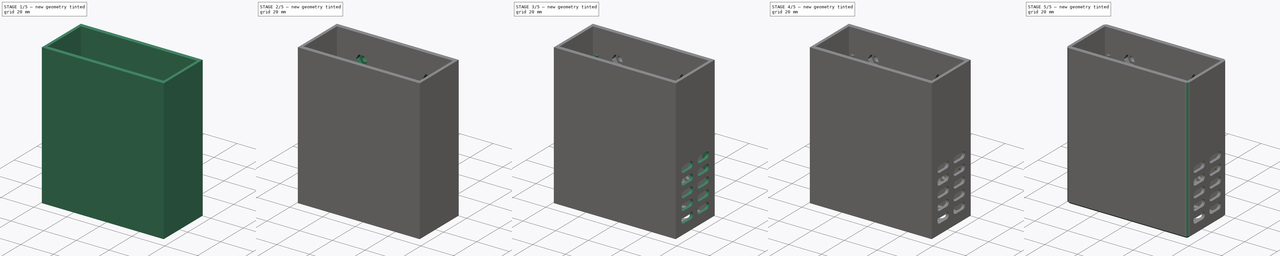
[diagram: build sequence overview — one tinted view per stage of 5, left to right]
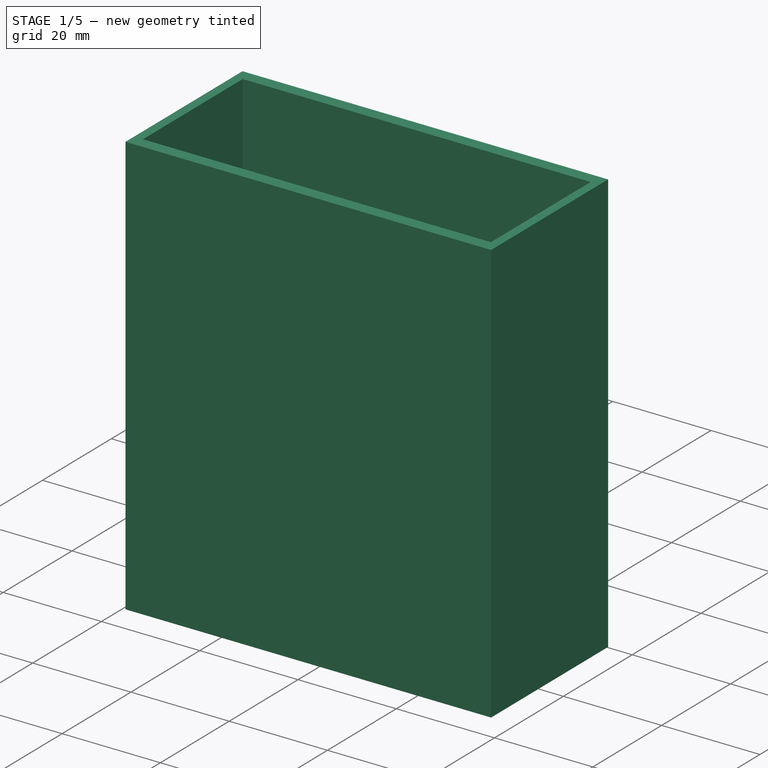
[diagram: stage 1 of 5 — iso view after this stage's code; geometry added in this stage tinted green]
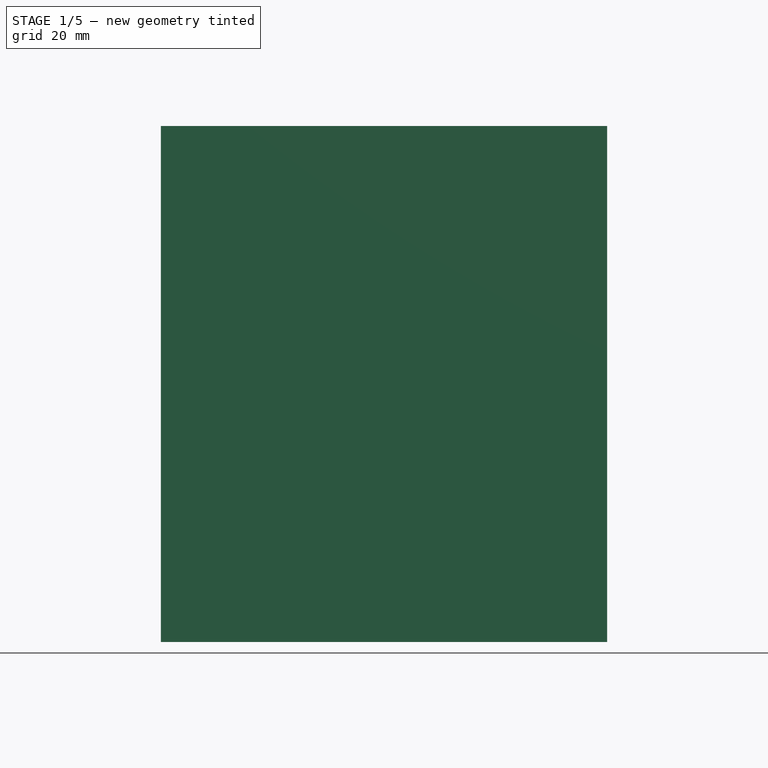
[diagram: stage 1 of 5 — front view after this stage's code; geometry added in this stage tinted green]
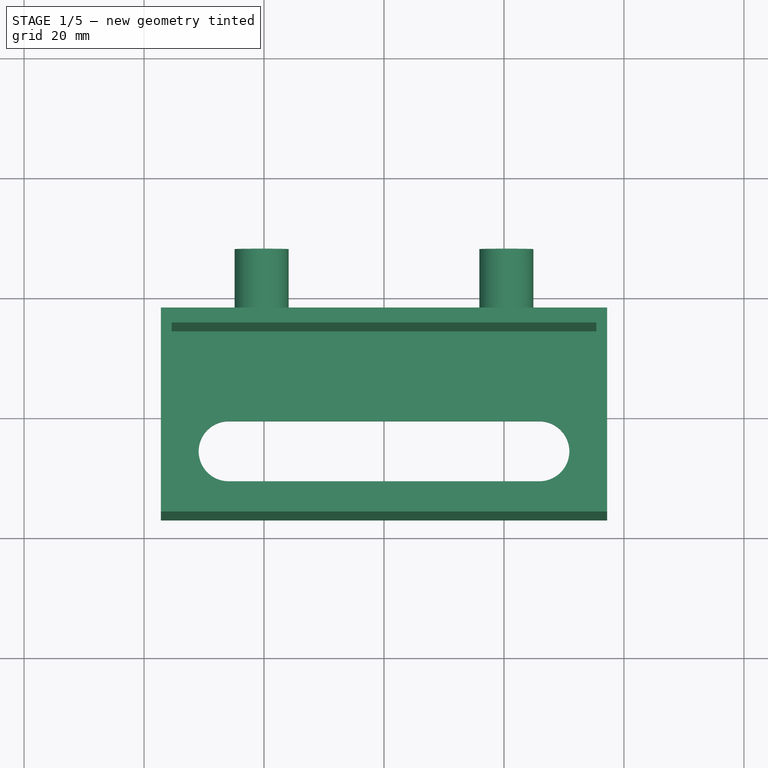
[diagram: stage 1 of 5 — top view after this stage's code; geometry added in this stage tinted green]
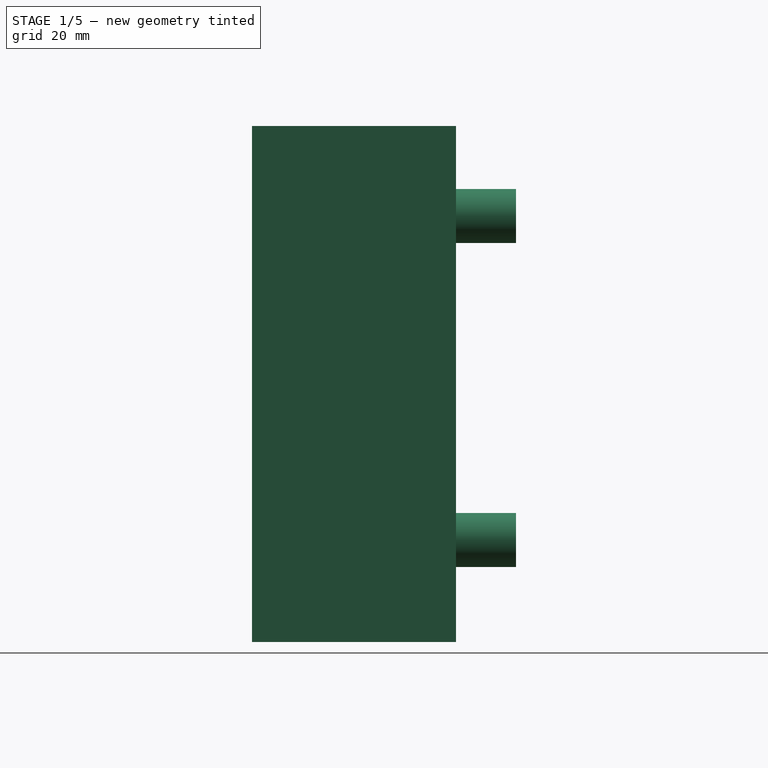
[diagram: stage 1 of 5 — right view after this stage's code; geometry added in this stage tinted green]
FCSTD DOCUMENT  (FreeCAD 0.19R22960 (Git))
Label: STC-1000 box
License: All rights reserved
LicenseURL: http://en.wikipedia.org/wiki/All_rights_reserved
objects: Sketcher::SketchObject×12, PartDesign::Pad×6, PartDesign::Pocket×6, PartDesign::LinearPattern×4, PartDesign::Chamfer×4, PartDesign::MultiTransform×3, PartDesign::Mirrored×3, PartDesign::Plane×1, PartDesign::Fillet×1, PartDesign::Body×1, TechDraw::DrawSVGTemplate×1, TechDraw::DrawViewPart×1, TechDraw::DrawPage×1
note: 58 computed .brp shape members not serialized (recipe doc carries the construction recipe); baked Part::Feature solids carry a one-line shape summary decoded from their .brp

FEATURE [Sketcher::SketchObject] Sketch
  MapMode = 5
  Support = -> [XY_Plane]
  sketch-geometry (4):
    g0: LineSegment StartX=-37.2 StartY=17 StartZ=0 EndX=37.2 EndY=17 EndZ=0
    g1: LineSegment StartX=37.2 StartY=17 StartZ=0 EndX=37.2 EndY=-17 EndZ=0
    g2: LineSegment StartX=37.2 StartY=-17 StartZ=0 EndX=-37.2 EndY=-17 EndZ=0
    g3: LineSegment StartX=-37.2 StartY=-17 StartZ=0 EndX=-37.2 EndY=17 EndZ=0
  constraints (11):
    c: Coincident(g0,g1)
    c: Coincident(g1,g2)
    c: Coincident(g2,g3)
    c: Coincident(g3,g0)
    c: Horizontal(g0)
    c: Horizontal(g2)
    c: Vertical(g1)
    c: Vertical(g3)
    c: Symmetric(g0,g1,g-1)
    c: DistanceX(g0,g0) = 74.4
    c: DistanceY(g3,g3) = 34
FEATURE [PartDesign::Pad] Pad
  Direction = (1,1,1)
  Length = 2
  Length2 = 100
  Profile = -> Sketch
  Refine = true
  Type = 0
FEATURE [Sketcher::SketchObject] Sketch001
  ExternalGeometry = -> [Pad]
  MapMode = 5
  Placement = pos=(0,0,2) rot=(0,0,1;0rad)
  Support = -> [Pad]
  sketch-geometry (8):
    g0: LineSegment StartX=-37.2 StartY=17 StartZ=0 EndX=37.2 EndY=17 EndZ=0
    g1: LineSegment StartX=37.2 StartY=17 StartZ=0 EndX=37.2 EndY=-17 EndZ=0
    g2: LineSegment StartX=37.2 StartY=-17 StartZ=0 EndX=-37.2 EndY=-17 EndZ=0
    g3: LineSegment StartX=-37.2 StartY=-17 StartZ=0 EndX=-37.2 EndY=17 EndZ=0
    g4: LineSegment StartX=-35.4 StartY=14.5 StartZ=0 EndX=35.4 EndY=14.5 EndZ=0
    g5: LineSegment StartX=35.4 StartY=14.5 StartZ=0 EndX=35.4 EndY=-14.5 EndZ=0
    g6: LineSegment StartX=35.4 StartY=-14.5 StartZ=0 EndX=-35.4 EndY=-14.5 EndZ=0
    g7: LineSegment StartX=-35.4 StartY=-14.5 StartZ=0 EndX=-35.4 EndY=14.5 EndZ=0
  constraints (23):
    c: Coincident(g0,g1)
    c: Coincident(g1,g2)
    c: Coincident(g2,g3)
    c: Coincident(g3,g0)
    c: Horizontal(g0)
    c: Horizontal(g2)
    c: Vertical(g1)
    c: Vertical(g3)
    c: Coincident(g0,g-3)
    c: Coincident(g1,g-4)
    c: Coincident(g4,g5)
    c: Coincident(g5,g6)
    c: Coincident(g6,g7)
    c: Coincident(g7,g4)
    c: Horizontal(g4)
    c: Horizontal(g6)
    c: Vertical(g5)
    c: Vertical(g7)
    c: Symmetric(g4,g5,g-1)
    c: DistanceY(g4,g0) = 2.5
    c: DistanceX(g0,g4) = 1.8
    c: DistanceX(g4,g4) = 70.8
    c: DistanceY(g5,g5) = 29
FEATURE [PartDesign::Pad] Pad001
  BaseFeature = -> Pad
  Direction = (1,1,1)
  Length = 84
  Length2 = 100
  Profile = -> Sketch001
  Refine = true
  Type = 0
FEATURE [Sketcher::SketchObject] Sketch002
  ExternalGeometry = -> [Pad001]
  MapMode = 5
  Placement = pos=(0,0,0) rot=(1,0,0;3.14159rad)
  Support = -> [Pad001]
  sketch-geometry (5):
    g0: ArcOfCircle CenterX=-25.9 CenterY=5.5 CenterZ=0 NormalX=0 NormalY=0 NormalZ=1 AngleXU=0 Radius=5 StartAngle=1.5708 EndAngle=4.71239
    g1: ArcOfCircle CenterX=25.9 CenterY=5.5 CenterZ=0 NormalX=0 NormalY=0 NormalZ=1 AngleXU=0 Radius=5 StartAngle=4.71239 EndAngle=7.85398
    g2: LineSegment StartX=-25.9 StartY=0.5 StartZ=0 EndX=25.9 EndY=0.5 EndZ=0
    g3: LineSegment StartX=-25.9 StartY=10.5 StartZ=0 EndX=25.9 EndY=10.5 EndZ=0
    g4: GeomPoint X=30.9 Y=5.5 Z=0
  constraints (12):
    c: Tangent(g0,g3)
    c: Tangent(g0,g2)
    c: Tangent(g2,g1)
    c: Horizontal(g2)
    c: Coincident(g1,g3)
    c: Horizontal(g3)
    c: Symmetric(g0,g1,g-2)
    c: DistanceY(g1,g1) = 10
    c: PointOnObject(g4,g1)
    c: Horizontal(g4,g1)
    c: DistanceX(g4,g-3) = 4.5
    c: DistanceY(g1,g-4) = 9
FEATURE [PartDesign::Pocket] Pocket
  BaseFeature = -> Pad001
  Length = 5
  Length2 = 100
  Profile = -> Sketch002
  Refine = true
  Type = 2
FEATURE [Sketcher::SketchObject] Sketch003
  ExternalGeometry = -> [Pocket]
  MapMode = 5
  Placement = pos=(0,17,0) rot=(0,0.707107,0.707107;3.14159rad)
  Support = -> [Pocket]
  sketch-geometry (5):
    g0: Circle CenterX=20.4 CenterY=71 CenterZ=0 NormalX=0 NormalY=0 NormalZ=1 AngleXU=0 Radius=4.5
    g1: Circle CenterX=20.4 CenterY=17 CenterZ=0 NormalX=0 NormalY=0 NormalZ=1 AngleXU=0 Radius=4.5
    g2: Circle CenterX=-20.4 CenterY=71 CenterZ=0 NormalX=0 NormalY=0 NormalZ=1 AngleXU=0 Radius=4.5
    g3: Circle CenterX=-20.4 CenterY=17 CenterZ=0 NormalX=0 NormalY=0 NormalZ=1 AngleXU=0 Radius=4.5
    g4: LineSegment [constr] StartX=35.4 StartY=44 StartZ=0 EndX=-35.4 EndY=44 EndZ=0
  constraints (12):
    c: Equal(g2,g0)
    c: Equal(g0,g1)
    c: Equal(g1,g3)
    c: Diameter(g2) = 9
    c: Symmetric(g3,g1,g-2)
    c: Symmetric(g2,g0,g-2)
    c: Symmetric(g-5,g-5,g4)
    c: PointOnObject(g4,g-5)
    c: PointOnObject(g4,g-4)
    c: Symmetric(g0,g1,g4)
    c: DistanceY(g-5,g3) = 15
    c: DistanceX(g-5,g3) = 15
FEATURE [PartDesign::Pad] Pad002
  BaseFeature = -> Pocket
  Direction = (1,1,1)
  Length = 10
  Length2 = 100
  Profile = -> Sketch003
  Refine = true
  Type = 0
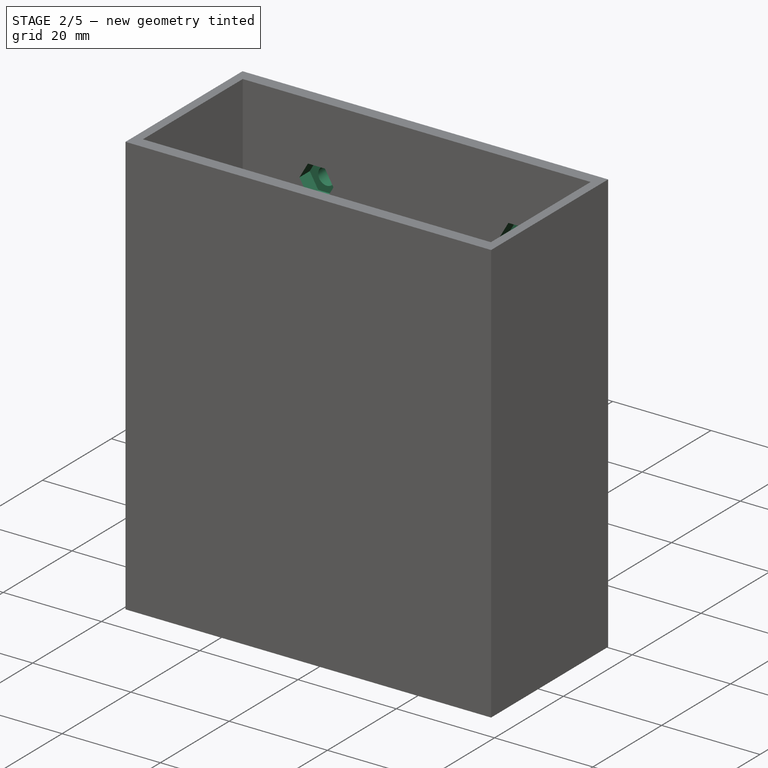
[diagram: stage 2 of 5 — iso view after this stage's code; geometry added in this stage tinted green]
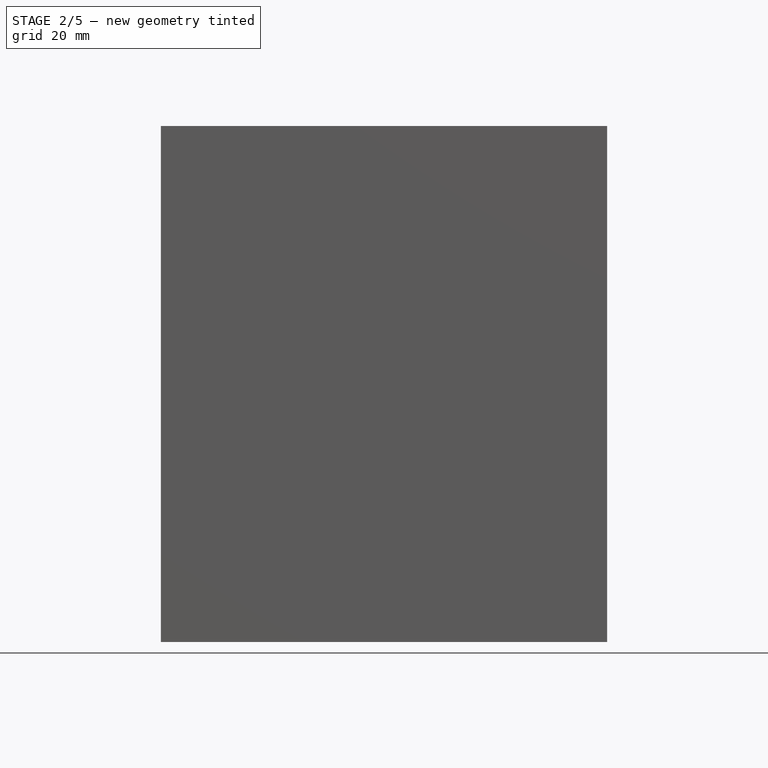
[diagram: stage 2 of 5 — front view after this stage's code; geometry added in this stage tinted green]
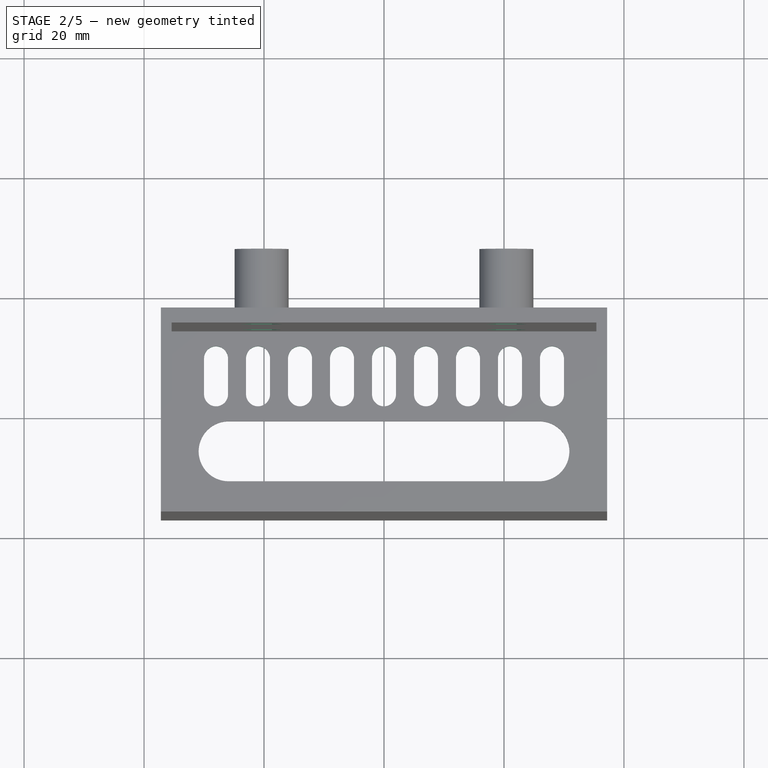
[diagram: stage 2 of 5 — top view after this stage's code; geometry added in this stage tinted green]
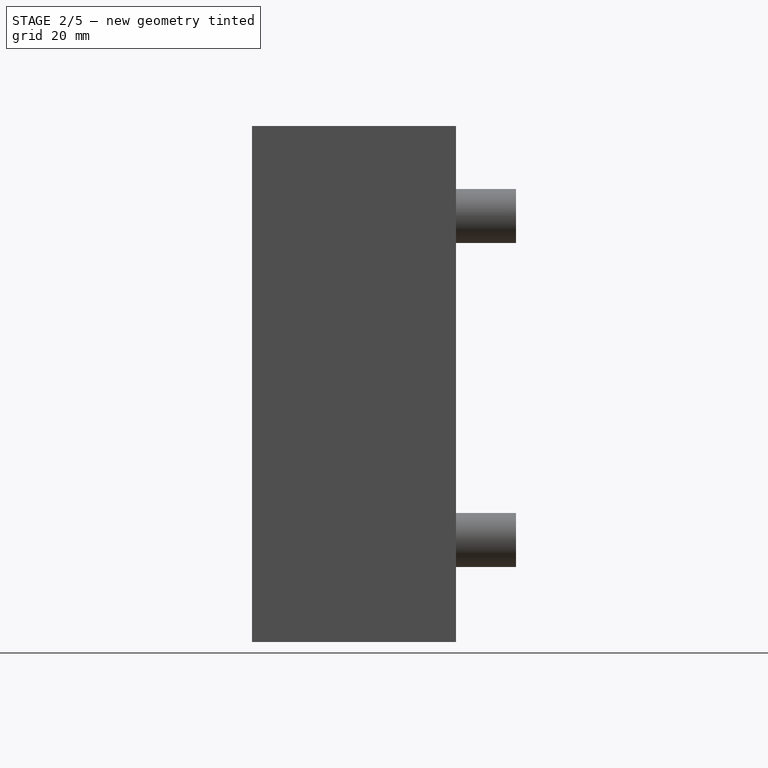
[diagram: stage 2 of 5 — right view after this stage's code; geometry added in this stage tinted green]
FEATURE [Sketcher::SketchObject] Sketch004
  ExternalGeometry = -> [Pad002]
  MapMode = 5
  Placement = pos=(0,14.5,0) rot=(1,0,0;1.5708rad)
  Support = -> [Pad002]
  sketch-geometry (4):
    g0: Circle CenterX=-20.4 CenterY=71 CenterZ=0 NormalX=0 NormalY=0 NormalZ=1 AngleXU=0 Radius=1.75
    g1: Circle CenterX=20.4 CenterY=71 CenterZ=0 NormalX=0 NormalY=0 NormalZ=1 AngleXU=0 Radius=1.75
    g2: Circle CenterX=20.4 CenterY=17 CenterZ=0 NormalX=0 NormalY=0 NormalZ=1 AngleXU=0 Radius=1.75
    g3: Circle CenterX=-20.4 CenterY=17 CenterZ=0 NormalX=0 NormalY=0 NormalZ=1 AngleXU=0 Radius=1.75
  constraints (8):
    c: Coincident(g0,g-3)
    c: Coincident(g1,g-4)
    c: Coincident(g2,g-5)
    c: Coincident(g3,g-6)
    c: Equal(g3,g2)
    c: Equal(g2,g1)
    c: Equal(g1,g0)
    c: Diameter(g0) = 3.5
FEATURE [PartDesign::Pocket] Pocket001
  BaseFeature = -> Pad002
  Length = 4
  Length2 = 100
  Profile = -> Sketch004
  Refine = true
  Type = 1
FEATURE [Sketcher::SketchObject] Sketch005
  ExternalGeometry = -> [Pocket001]
  MapMode = 5
  Placement = pos=(0,14.5,0) rot=(1,0,0;1.5708rad)
  Support = -> [Pocket001]
  sketch-geometry (28):
    g0: LineSegment StartX=-18.6679 StartY=68 StartZ=0 EndX=-16.9359 EndY=71 EndZ=0
    g1: LineSegment StartX=-16.9359 StartY=71 StartZ=0 EndX=-18.6679 EndY=74 EndZ=0
    g2: LineSegment StartX=-18.6679 StartY=74 StartZ=0 EndX=-22.1321 EndY=74 EndZ=0
    g3: LineSegment StartX=-22.1321 StartY=74 StartZ=0 EndX=-23.8641 EndY=71 EndZ=0
    g4: LineSegment StartX=-23.8641 StartY=71 StartZ=0 EndX=-22.1321 EndY=68 EndZ=0
    g5: LineSegment StartX=-22.1321 StartY=68 StartZ=0 EndX=-18.6679 EndY=68 EndZ=0
    g6: Circle [constr] CenterX=-20.4 CenterY=71 CenterZ=0 NormalX=0 NormalY=0 NormalZ=1 AngleXU=0 Radius=3.4641
    g7: LineSegment StartX=22.1321 StartY=68 StartZ=0 EndX=23.8641 EndY=71 EndZ=0
    g8: LineSegment StartX=23.8641 StartY=71 StartZ=0 EndX=22.1321 EndY=74 EndZ=0
    g9: LineSegment StartX=22.1321 StartY=74 StartZ=0 EndX=18.6679 EndY=74 EndZ=0
    g10: LineSegment StartX=18.6679 StartY=74 StartZ=0 EndX=16.9359 EndY=71 EndZ=0
    g11: LineSegment StartX=16.9359 StartY=71 StartZ=0 EndX=18.6679 EndY=68 EndZ=0
    g12: LineSegment StartX=18.6679 StartY=68 StartZ=0 EndX=22.1321 EndY=68 EndZ=0
    g13: Circle [constr] CenterX=20.4 CenterY=71 CenterZ=0 NormalX=0 NormalY=0 NormalZ=1 AngleXU=0 Radius=3.4641
    g14: LineSegment StartX=-18.6679 StartY=14 StartZ=0 EndX=-16.9359 EndY=17 EndZ=0
    g15: LineSegment StartX=-16.9359 StartY=17 StartZ=0 EndX=-18.6679 EndY=20 EndZ=0
    g16: LineSegment StartX=-18.6679 StartY=20 StartZ=0 EndX=-22.1321 EndY=20 EndZ=0
    g17: LineSegment StartX=-22.1321 StartY=20 StartZ=0 EndX=-23.8641 EndY=17 EndZ=0
    g18: LineSegment StartX=-23.8641 StartY=17 StartZ=0 EndX=-22.1321 EndY=14 EndZ=0
    g19: LineSegment StartX=-22.1321 StartY=14 StartZ=0 EndX=-18.6679 EndY=14 EndZ=0
    g20: Circle [constr] CenterX=-20.4 CenterY=17 CenterZ=0 NormalX=0 NormalY=0 NormalZ=1 AngleXU=0 Radius=3.4641
    g21: LineSegment StartX=22.1321 StartY=14 StartZ=0 EndX=23.8641 EndY=17 EndZ=0
    g22: LineSegment StartX=23.8641 StartY=17 StartZ=0 EndX=22.1321 EndY=20 EndZ=0
    g23: LineSegment StartX=22.1321 StartY=20 StartZ=0 EndX=18.6679 EndY=20 EndZ=0
    g24: LineSegment StartX=18.6679 StartY=20 StartZ=0 EndX=16.9359 EndY=17 EndZ=0
    g25: LineSegment StartX=16.9359 StartY=17 StartZ=0 EndX=18.6679 EndY=14 EndZ=0
    g26: LineSegment StartX=18.6679 StartY=14 StartZ=0 EndX=22.1321 EndY=14 EndZ=0
    g27: Circle [constr] CenterX=20.4 CenterY=17 CenterZ=0 NormalX=0 NormalY=0 NormalZ=1 AngleXU=0 Radius=3.4641
  constraints (65):
    c: Coincident(g0,g1)
    c: Coincident(g1,g2)
    c: Coincident(g2,g3)
    c: Coincident(g3,g4)
    c: Coincident(g4,g5)
    c: Coincident(g5,g0)
    c: Equal(g0, g1-g4) x4
    c: PointOnObject(g0,g6)
    c: PointOnObject(g1,g6)
    c: PointOnObject(g2,g6)
    c: PointOnObject(g3,g6)
    c: PointOnObject(g4,g6)
    c: PointOnObject(g5,g6)
    c: Coincident(g6,g-3)
    c: Coincident(g7,g8)
    c: Coincident(g8,g9)
    c: Coincident(g9,g10)
    c: Coincident(g10,g11)
    c: Coincident(g11,g12)
    c: Coincident(g12,g7)
    c: Equal(g7, g8-g12) x5
    c: PointOnObject(g7,g13)
    c: PointOnObject(g8,g13)
    c: PointOnObject(g9,g13)
    c: PointOnObject(g10,g13)
    c: PointOnObject(g11,g13)
    c: PointOnObject(g12,g13)
    c: Coincident(g13,g-4)
    c: Coincident(g14,g15)
    c: Coincident(g15,g16)
    c: Coincident(g16,g17)
    c: Coincident(g17,g18)
    c: Coincident(g18,g19)
    c: Coincident(g19,g14)
    c: Equal(g14, g15-g19) x5
    c: PointOnObject(g14,g20)
    c: PointOnObject(g15,g20)
    c: PointOnObject(g16,g20)
    c: PointOnObject(g17,g20)
    c: PointOnObject(g18,g20)
    c: PointOnObject(g19,g20)
    c: Coincident(g20,g-6)
    c: Coincident(g21,g22)
    c: Coincident(g22,g23)
    c: Coincident(g23,g24)
    c: Coincident(g24,g25)
    c: Coincident(g25,g26)
    c: Coincident(g26,g21)
    c: Equal(g21, g22-g26) x5
    c: PointOnObject(g21,g27)
    c: PointOnObject(g22,g27)
    c: PointOnObject(g23,g27)
    c: PointOnObject(g24,g27)
    c: PointOnObject(g25,g27)
    c: PointOnObject(g26,g27)
    c: Coincident(g27,g-5)
    c: Equal(g27,g20)
    c: Equal(g20,g13)
    c: Equal(g13,g6)
    c: Horizontal(g12)
    c: Horizontal(g5)
    c: Horizontal(g19)
    c: Horizontal(g26)
    c: DistanceY(g0,g1) = 6
    c: Equal(g4,g5)
FEATURE [PartDesign::Pocket] Pocket002
  BaseFeature = -> Pocket001
  Length = 3
  Length2 = 100
  Profile = -> Sketch005
  Refine = true
  Type = 0
FEATURE [Sketcher::SketchObject] Sketch006
  MapMode = 5
  Placement = pos=(0,0,0) rot=(1,0,0;3.14159rad)
  Support = -> [Pocket002]
  sketch-geometry (4):
    g0: ArcOfCircle CenterX=0 CenterY=-4 CenterZ=0 NormalX=0 NormalY=0 NormalZ=1 AngleXU=0 Radius=2 StartAngle=-2.49933e-11 EndAngle=3.14159
    g1: ArcOfCircle CenterX=1e-16 CenterY=-10 CenterZ=0 NormalX=0 NormalY=0 NormalZ=1 AngleXU=0 Radius=2 StartAngle=3.14159 EndAngle=6.28319
    g2: LineSegment StartX=-2 StartY=-4 StartZ=0 EndX=-2 EndY=-10 EndZ=0
    g3: LineSegment StartX=2 StartY=-4 StartZ=0 EndX=2 EndY=-10 EndZ=0
  constraints (10):
    c: Tangent(g0,g3)
    c: Tangent(g0,g2)
    c: Tangent(g2,g1)
    c: Tangent(g3,g1)
    c: Vertical(g2)
    c: Equal(g0,g1)
    c: PointOnObject(g0,g-2)
    c: DistanceX(g0,g0) = 4
    c: DistanceY(g1,g0) = 6
    c: DistanceY(g0,g-1) = 4
FEATURE [PartDesign::Pocket] Pocket003
  BaseFeature = -> Pocket002
  Length = 5
  Length2 = 100
  Profile = -> Sketch006
  Refine = true
  Type = 2
FEATURE [PartDesign::LinearPattern] LinearPattern
  Direction = -> Sketch006 [H_Axis]
  Length = 28
  Occurrences = 5
  Refine = true
FEATURE [PartDesign::LinearPattern] LinearPattern001
  Direction = -> Sketch006 [H_Axis]
  Length = 28
  Occurrences = 5
  Refine = true
  Reversed = true
FEATURE [PartDesign::MultiTransform] MultiTransform
  BaseFeature = -> Pocket003
  Originals = -> [Pocket003]
  Refine = true
  Transformations = -> [LinearPattern,LinearPattern001]
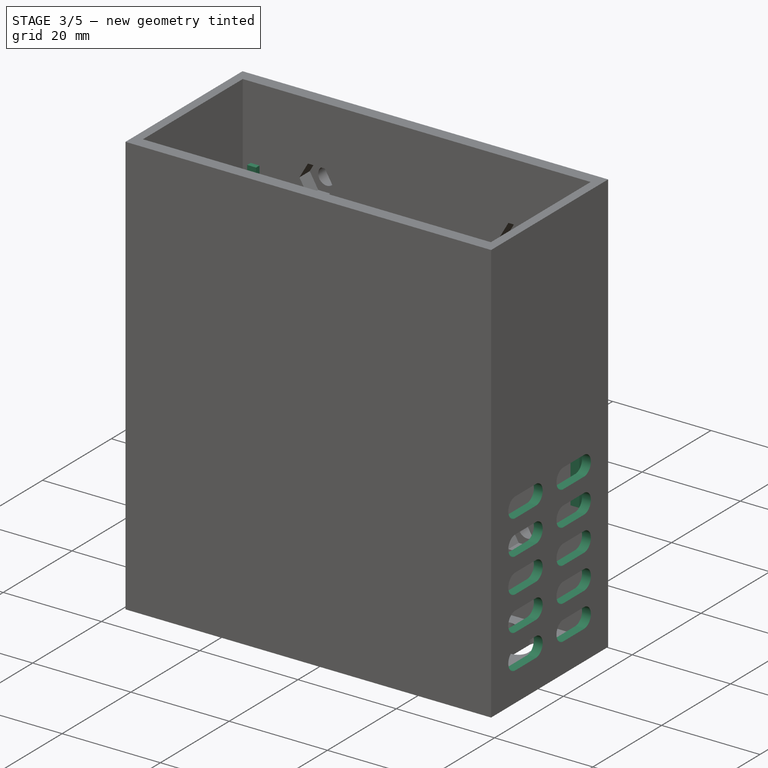
[diagram: stage 3 of 5 — iso view after this stage's code; geometry added in this stage tinted green]
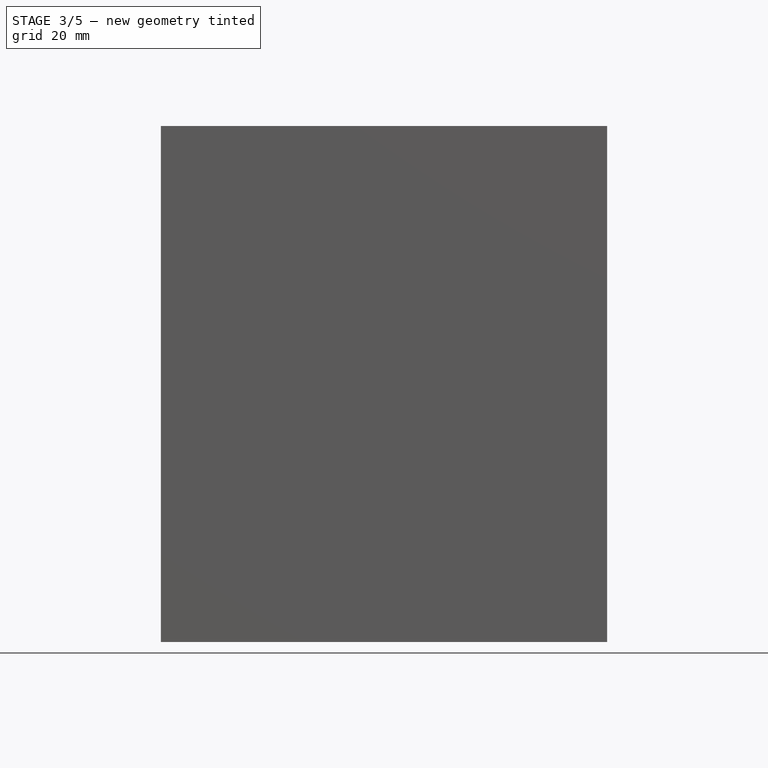
[diagram: stage 3 of 5 — front view after this stage's code; geometry added in this stage tinted green]
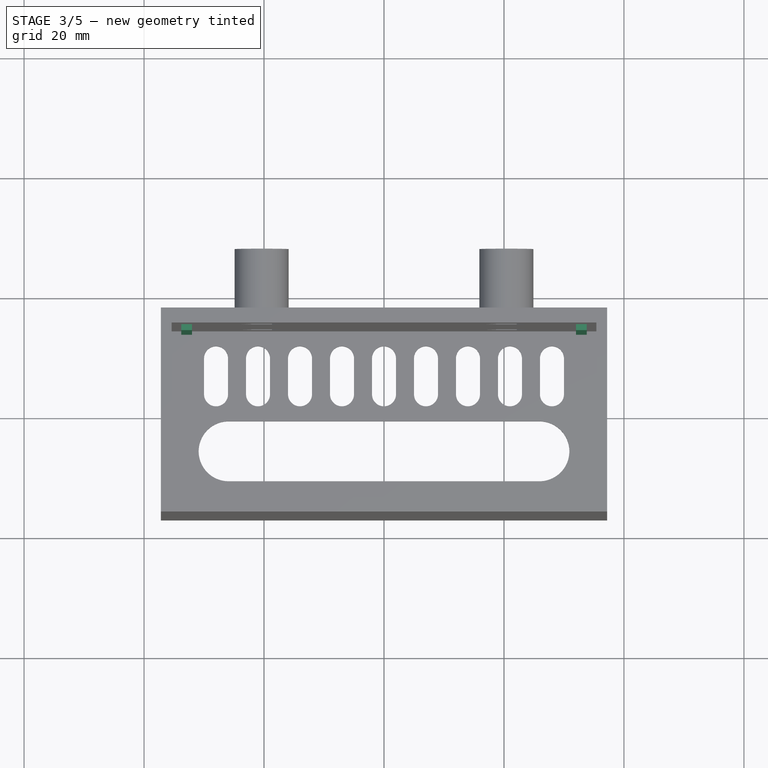
[diagram: stage 3 of 5 — top view after this stage's code; geometry added in this stage tinted green]
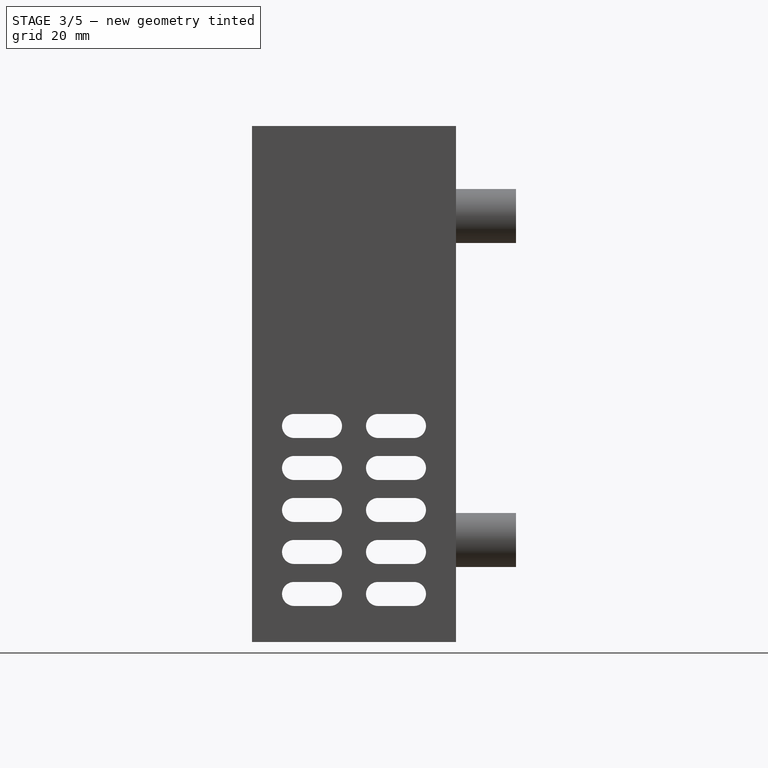
[diagram: stage 3 of 5 — right view after this stage's code; geometry added in this stage tinted green]
FEATURE [Sketcher::SketchObject] Sketch007
  MapMode = 5
  Placement = pos=(-37.2,0,0) rot=(0.57735,-0.57735,-0.57735;2.0944rad)
  Support = -> [MultiTransform]
  sketch-geometry (4):
    g0: ArcOfCircle CenterX=4 CenterY=8 CenterZ=0 NormalX=0 NormalY=0 NormalZ=1 AngleXU=0 Radius=2 StartAngle=1.5708 EndAngle=4.71239
    g1: ArcOfCircle CenterX=10 CenterY=8 CenterZ=0 NormalX=0 NormalY=0 NormalZ=1 AngleXU=0 Radius=2 StartAngle=4.71239 EndAngle=7.85398
    g2: LineSegment StartX=4 StartY=6 StartZ=0 EndX=10 EndY=6 EndZ=0
    g3: LineSegment StartX=4 StartY=10 StartZ=0 EndX=10 EndY=10 EndZ=0
  constraints (10):
    c: Tangent(g0,g3)
    c: Tangent(g0,g2)
    c: Tangent(g2,g1)
    c: Tangent(g3,g1)
    c: Horizontal(g2)
    c: Equal(g0,g1)
    c: DistanceX(g0,g1) = 6
    c: Diameter(g1) = 4
    c: DistanceX(g-1,g0) = 4
    c: DistanceY(g-1,g0) = 8
FEATURE [PartDesign::Pocket] Pocket004
  BaseFeature = -> MultiTransform
  Length = 5
  Length2 = 100
  Profile = -> Sketch007
  Refine = true
  Type = 2
FEATURE [PartDesign::LinearPattern] LinearPattern002
  Direction = -> Sketch007 [V_Axis]
  Length = 28
  Occurrences = 5
  Refine = true
FEATURE [PartDesign::Mirrored] Mirrored
  MirrorPlane = -> Sketch007 [V_Axis]
  Refine = true
FEATURE [PartDesign::MultiTransform] MultiTransform001
  BaseFeature = -> Pocket004
  Originals = -> [Pocket004]
  Refine = true
  Transformations = -> [LinearPattern002,Mirrored]
FEATURE [Sketcher::SketchObject] Sketch008
  ExternalGeometry = -> [MultiTransform001]
  MapMode = 5
  Placement = pos=(37.2,0,0) rot=(0.57735,0.57735,0.57735;2.0944rad)
  Support = -> [MultiTransform001]
  sketch-geometry (4):
    g0: ArcOfCircle CenterX=4 CenterY=8 CenterZ=0 NormalX=0 NormalY=0 NormalZ=1 AngleXU=0 Radius=2 StartAngle=1.5708 EndAngle=4.71239
    g1: ArcOfCircle CenterX=10 CenterY=8 CenterZ=0 NormalX=0 NormalY=0 NormalZ=1 AngleXU=0 Radius=2 StartAngle=4.71239 EndAngle=7.85398
    g2: LineSegment StartX=4 StartY=6 StartZ=0 EndX=10 EndY=6 EndZ=0
    g3: LineSegment StartX=4 StartY=10 StartZ=0 EndX=10 EndY=10 EndZ=0
  constraints (7):
    c: Tangent(g0,g3)
    c: Tangent(g0,g2)
    c: Tangent(g2,g1)
    c: Tangent(g3,g1)
    c: Coincident(g0,g-3)
    c: Coincident(g1,g-4)
    c: Coincident(g1,g-4)
FEATURE [PartDesign::Pocket] Pocket005
  BaseFeature = -> MultiTransform001
  Length = 5
  Length2 = 100
  Profile = -> Sketch008
  Refine = true
  Type = 2
FEATURE [PartDesign::LinearPattern] LinearPattern003
  Direction = -> Sketch008 [V_Axis]
  Length = 28
  Occurrences = 5
  Refine = true
FEATURE [PartDesign::Mirrored] Mirrored001
  MirrorPlane = -> Sketch008 [V_Axis]
  Refine = true
FEATURE [PartDesign::MultiTransform] MultiTransform002
  BaseFeature = -> Pocket005
  Originals = -> [Pocket005]
  Refine = true
  Transformations = -> [LinearPattern003,Mirrored001]
FEATURE [Sketcher::SketchObject] Sketch009
  ExternalGeometry = -> [MultiTransform002]
  MapMode = 5
  Placement = pos=(0,14.5,0) rot=(1,0,0;1.5708rad)
  Support = -> [MultiTransform002]
  sketch-geometry (8):
    g0: LineSegment StartX=-33.8 StartY=71 StartZ=0 EndX=-32 EndY=71 EndZ=0
    g1: LineSegment StartX=-32 StartY=71 StartZ=0 EndX=-32 EndY=26 EndZ=0
    g2: LineSegment StartX=-32 StartY=26 StartZ=0 EndX=-33.8 EndY=26 EndZ=0
    g3: LineSegment StartX=-33.8 StartY=26 StartZ=0 EndX=-33.8 EndY=71 EndZ=0
    g4: LineSegment StartX=32 StartY=71 StartZ=0 EndX=33.8 EndY=71 EndZ=0
    g5: LineSegment StartX=33.8 StartY=71 StartZ=0 EndX=33.8 EndY=26 EndZ=0
    g6: LineSegment StartX=33.8 StartY=26 StartZ=0 EndX=32 EndY=26 EndZ=0
    g7: LineSegment StartX=32 StartY=26 StartZ=0 EndX=32 EndY=71 EndZ=0
  constraints (21):
    c: Coincident(g0,g1)
    c: Coincident(g1,g2)
    c: Coincident(g2,g3)
    c: Coincident(g3,g0)
    c: Horizontal(g0)
    c: Horizontal(g2)
    c: Vertical(g1)
    c: Vertical(g3)
    c: Coincident(g4,g5)
    c: Coincident(g5,g6)
    c: Coincident(g6,g7)
    c: Coincident(g7,g4)
    c: Horizontal(g4)
    c: Vertical(g5)
    c: Symmetric(g6,g1,g-2)
    c: DistanceY(g4,g-4) = 15
    c: Symmetric(g4,g0,g-2)
    c: DistanceX(g4,g4) = 1.8
    c: Symmetric(g5,g2,g-2)
    c: DistanceX(g0,g4) = 67.6
    c: DistanceY(g7,g7) = 45
FEATURE [PartDesign::Pad] Pad003
  BaseFeature = -> MultiTransform002
  Direction = (1,1,1)
  Length = 1
  Length2 = 100
  Profile = -> Sketch009
  Refine = true
  Type = 0
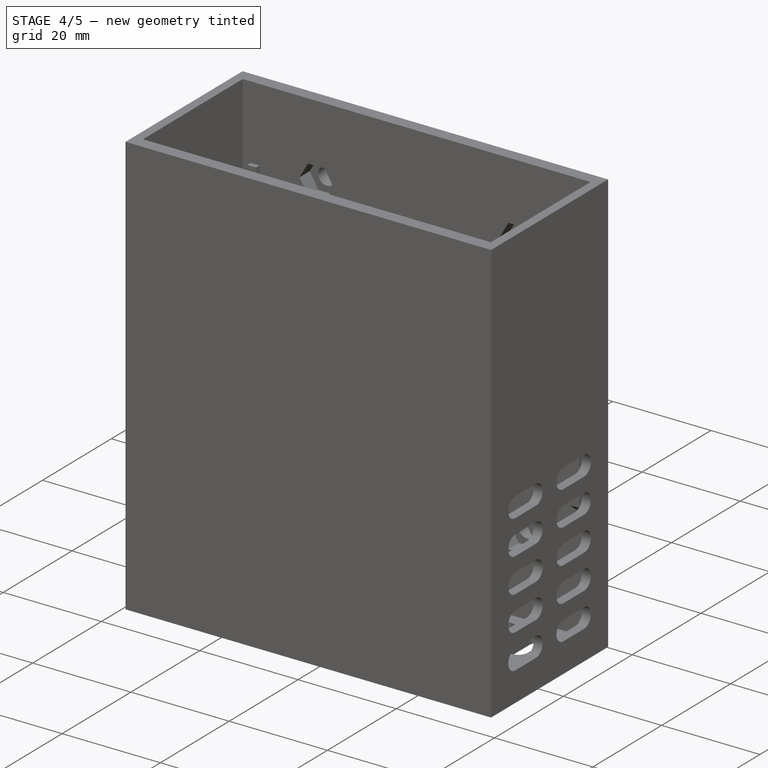
[diagram: stage 4 of 5 — iso view after this stage's code; geometry added in this stage tinted green]
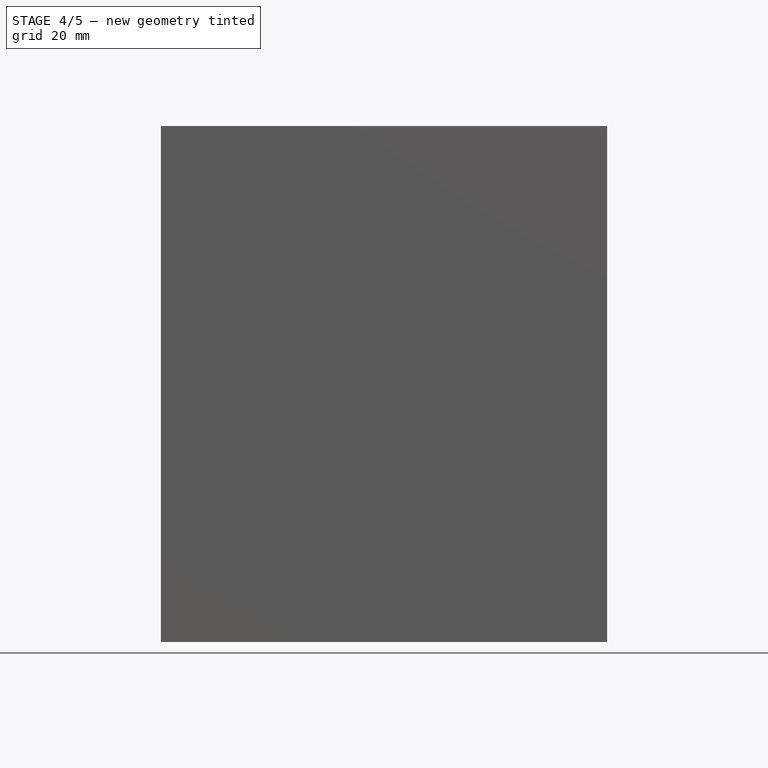
[diagram: stage 4 of 5 — front view after this stage's code; geometry added in this stage tinted green]
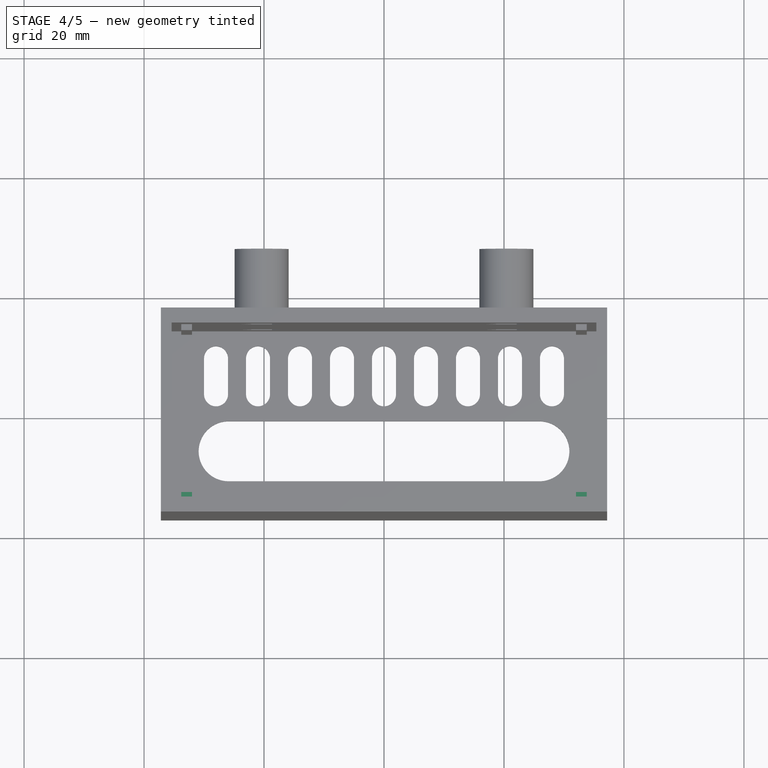
[diagram: stage 4 of 5 — top view after this stage's code; geometry added in this stage tinted green]
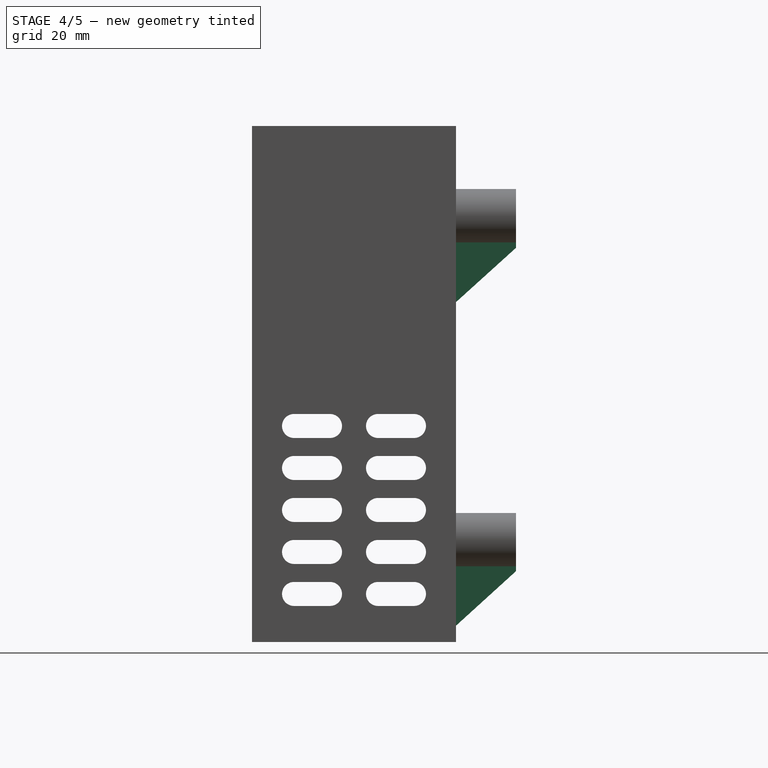
[diagram: stage 4 of 5 — right view after this stage's code; geometry added in this stage tinted green]
FEATURE [Sketcher::SketchObject] Sketch010
  ExternalGeometry = -> [Pad003]
  MapMode = 5
  Placement = pos=(0,-14.5,0) rot=(0,0.707107,0.707107;3.14159rad)
  Support = -> [Pad003]
  sketch-geometry (8):
    g0: LineSegment StartX=-33.8 StartY=71 StartZ=0 EndX=-32 EndY=71 EndZ=0
    g1: LineSegment StartX=-32 StartY=71 StartZ=0 EndX=-32 EndY=26 EndZ=0
    g2: LineSegment StartX=-32 StartY=26 StartZ=0 EndX=-33.8 EndY=26 EndZ=0
    g3: LineSegment StartX=-33.8 StartY=26 StartZ=0 EndX=-33.8 EndY=71 EndZ=0
    g4: LineSegment StartX=32 StartY=71 StartZ=0 EndX=33.8 EndY=71 EndZ=0
    g5: LineSegment StartX=33.8 StartY=71 StartZ=0 EndX=33.8 EndY=26 EndZ=0
    g6: LineSegment StartX=33.8 StartY=26 StartZ=0 EndX=32 EndY=26 EndZ=0
    g7: LineSegment StartX=32 StartY=26 StartZ=0 EndX=32 EndY=71 EndZ=0
  constraints (20):
    c: Coincident(g0,g1)
    c: Coincident(g1,g2)
    c: Coincident(g2,g3)
    c: Coincident(g3,g0)
    c: Horizontal(g0)
    c: Horizontal(g2)
    c: Vertical(g1)
    c: Vertical(g3)
    c: Coincident(g0,g-4)
    c: Coincident(g1,g-3)
    c: Coincident(g4,g5)
    c: Coincident(g5,g6)
    c: Coincident(g6,g7)
    c: Coincident(g7,g4)
    c: Horizontal(g4)
    c: Horizontal(g6)
    c: Vertical(g5)
    c: Vertical(g7)
    c: Coincident(g4,g-5)
    c: Coincident(g5,g-6)
FEATURE [PartDesign::Pad] Pad004
  BaseFeature = -> Pad003
  Direction = (1,1,1)
  Length = 1
  Length2 = 100
  Profile = -> Sketch010
  Refine = true
  Type = 0
FEATURE [PartDesign::Plane] DatumPlane
  AttachmentOffset = pos=(0,0,0) rot=(1,0,0;1.5708rad)
  Length = 126.195
  MapMode = 11
  Placement = pos=(20.4,27,71) rot=(0.707107,0,0.707107;3.14159rad)
  ResizeMode = 0
  Support = -> [Pad004]
  Width = 67.1947
FEATURE [Sketcher::SketchObject] Sketch011
  MapMode = 5
  Placement = pos=(20.4,27,71) rot=(0.707107,0,0.707107;3.14159rad)
  Support = -> [DatumPlane]
  sketch-geometry (8):
    g0: LineSegment StartX=-14.8 StartY=10.5 StartZ=0 EndX=-5.3 EndY=0 EndZ=0
    g1: LineSegment StartX=-58.2 StartY=11.0115 StartZ=0 EndX=-69.2115 EndY=11.0115 EndZ=0
    g2: LineSegment StartX=-58.2 StartY=0 StartZ=0 EndX=-58.2 EndY=11.0115 EndZ=0
    g3: LineSegment StartX=-5.3 StartY=0 StartZ=0 EndX=-4.3 EndY=0 EndZ=0
    g4: LineSegment StartX=-4.3 StartY=0 StartZ=0 EndX=-4.3 EndY=10.5 EndZ=0
    g5: LineSegment StartX=-14.8 StartY=10.5 StartZ=0 EndX=-4.3 EndY=10.5 EndZ=0
    g6: LineSegment StartX=-58.2 StartY=0 StartZ=0 EndX=-59.2 EndY=0 EndZ=0
    g7: LineSegment StartX=-59.2 StartY=0 StartZ=0 EndX=-69.2115 EndY=11.0115 EndZ=0
  constraints (23):
    c: PointOnObject(g0,g-1)
    c: Vertical(g2)
    c: Coincident(g2,g1)
    c: Horizontal(g1)
    c: Equal(g2,g1)
    c: PointOnObject(g2,g-1)
    c: DistanceX(g2,g-1) = 58.2
    c: Coincident(g0,g3)
    c: Horizontal(g3)
    c: Coincident(g3,g4)
    c: Vertical(g4)
    c: Coincident(g5,g0)
    c: Coincident(g5,g4)
    c: Horizontal(g5)
    c: Equal(g5,g4)
    c: DistanceX(g3,g3) = 1
    c: DistanceY(g4,g4) = 10.5
    c: DistanceX(g3,g-1) = 4.3
    c: Coincident(g2,g6)
    c: PointOnObject(g6,g-1)
    c: Coincident(g6,g7)
    c: Coincident(g7,g1)
    c: Equal(g6,g3)
FEATURE [PartDesign::Pad] Pad005
  BaseFeature = -> Pad004
  Direction = (1,1,1)
  Length = 2
  Length2 = 100
  Midplane = true
  Profile = -> Sketch011
  Refine = true
  Type = 0
FEATURE [PartDesign::Mirrored] Mirrored002
  BaseFeature = -> Pad005
  MirrorPlane = -> YZ_Plane
  Originals = -> [Pad005]
  Refine = true
FEATURE [PartDesign::Chamfer] Chamfer
  Angle = 45
  Base = -> Mirrored002 [Edge231,Edge221,Edge164,Edge168]
  BaseFeature = -> Mirrored002
  ChamferType = 0
  FlipDirection = false
  Refine = true
  Size = 0.99
  Size2 = 1
  SupportTransform = false
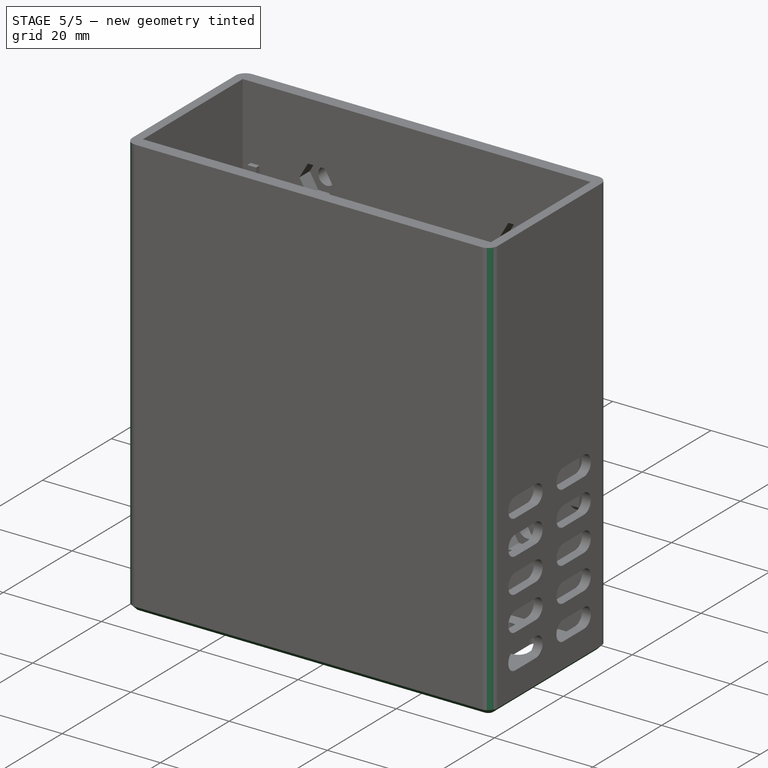
[diagram: stage 5 of 5 — iso view after this stage's code; geometry added in this stage tinted green]
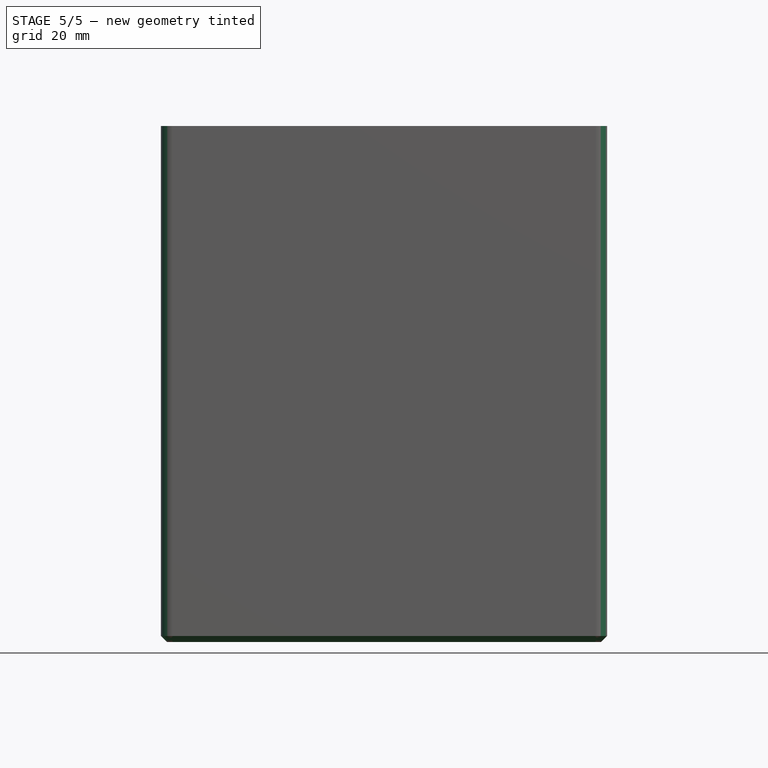
[diagram: stage 5 of 5 — front view after this stage's code; geometry added in this stage tinted green]
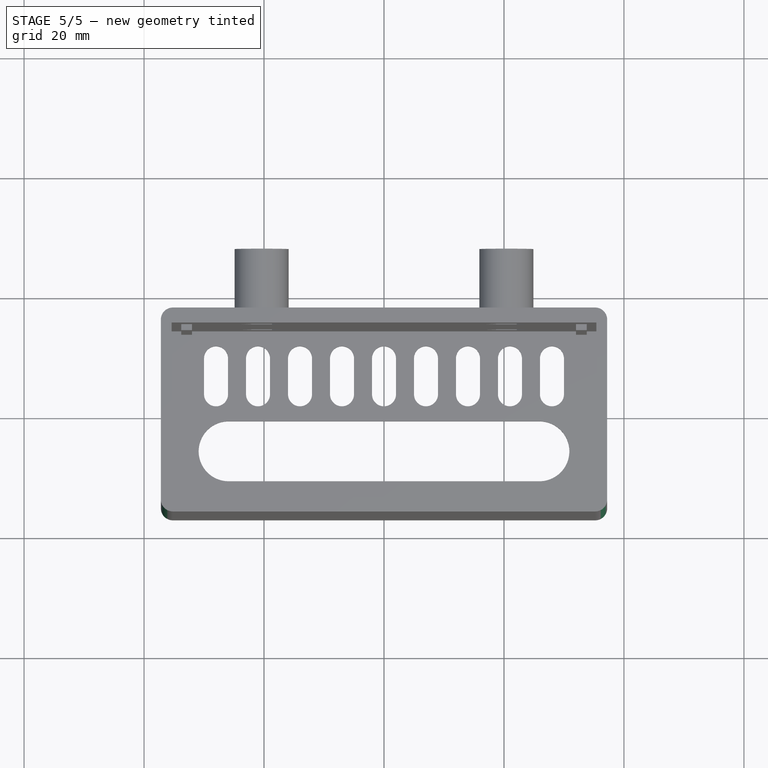
[diagram: stage 5 of 5 — top view after this stage's code; geometry added in this stage tinted green]
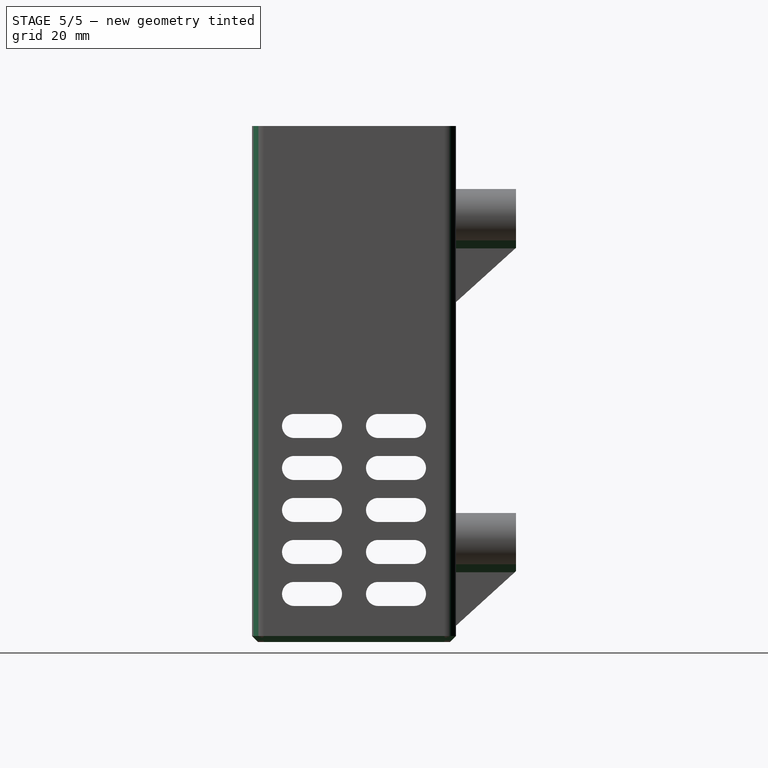
[diagram: stage 5 of 5 — right view after this stage's code; geometry added in this stage tinted green]
FEATURE [PartDesign::Fillet] Fillet
  Base = -> Chamfer [Edge391,Edge366,Edge368,Edge390]
  BaseFeature = -> Chamfer
  Radius = 2
  Refine = true
  SupportTransform = false
FEATURE [PartDesign::Chamfer] Chamfer001
  Angle = 45
  Base = -> Fillet [Edge13,Edge82,Edge128,Edge40]
  BaseFeature = -> Fillet
  ChamferType = 0
  FlipDirection = false
  Refine = true
  Size = 1
  Size2 = 1
  SupportTransform = false
FEATURE [PartDesign::Chamfer] Chamfer002
  Angle = 45
  Base = -> Chamfer001 [Edge52,Edge70,Edge61,Edge43]
  BaseFeature = -> Chamfer001
  ChamferType = 0
  FlipDirection = false
  Refine = true
  Size = 1
  Size2 = 1
  SupportTransform = false
FEATURE [PartDesign::Chamfer] Chamfer003
  Angle = 45
  Base = -> Chamfer002 [Edge67,Edge83,Edge72,Edge38]
  BaseFeature = -> Chamfer002
  ChamferType = 0
  FlipDirection = false
  Refine = true
  Size = 1
  Size2 = 1
  SupportTransform = false
FEATURE [PartDesign::Body] Body
  Group = -> [Sketch,Pad,Sketch001,Pad001,Sketch002,Pocket,Sketch003,Pad002,Sketch004,Pocket001,Sketch005,Pocket002,Sketch006,Pocket003,MultiTransform,LinearPattern,LinearPattern001,Sketch007,Pocket004,MultiTransform001,LinearPattern002,Mirrored,Sketch008,Pocket005,MultiTransform002,LinearPattern003,Mirrored001,Sketch009,Pad003,Sketch010,Pad004,DatumPlane,Sketch011,Pad005,Mirrored002,Chamfer,Fillet,Chamfer001,+2 more]
  Origin = -> Origin
  Tip = -> Chamfer003
FEATURE [TechDraw::DrawSVGTemplate] Template
  EditableTexts = Designed_by_Name=Primož; Drawing_number=1; FC-Date=2020-11-26; FC-SC=1:1; FC-SH=1; FC-Title=STC-1000 box; Subtitle=Mounting holes template
  Height = 210
  Orientation = 1
  Width = 297
FEATURE [TechDraw::DrawViewPart] View  label="Rear"
  CoarseView = false
  Direction = (0,1,0)
  Focus = 100
  HardHidden = false
  IsoCount = 0
  IsoHidden = false
  IsoVisible = false
  LockPosition = false
  Perspective = false
  Rotation = 0
  ScaleType = 0
  SeamHidden = false
  SeamVisible = true
  SmoothHidden = false
  SmoothVisible = true
  Source = -> [Chamfer003]
  X = 76.8784
  XDirection = (1,0,0)
  Y = 133.378
FEATURE [TechDraw::DrawPage] Page
  KeepUpdated = true
  NextBalloonIndex = 1
  ProjectionType = 0
  Template = -> Template
  Views = -> [View]
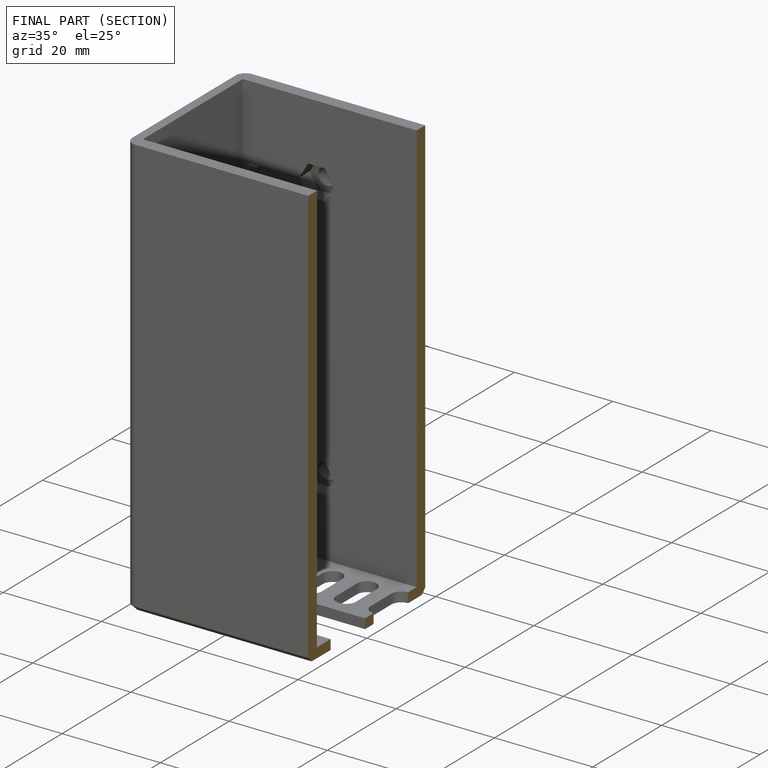
[diagram: finished part — half-section view (interior)]
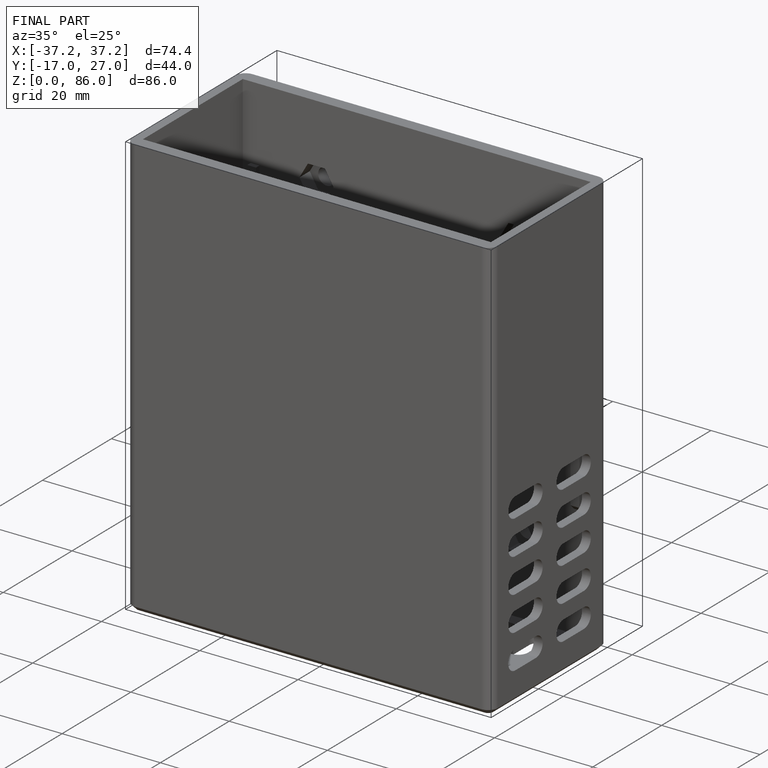
[diagram: finished part — iso view with bounding-box wireframe]
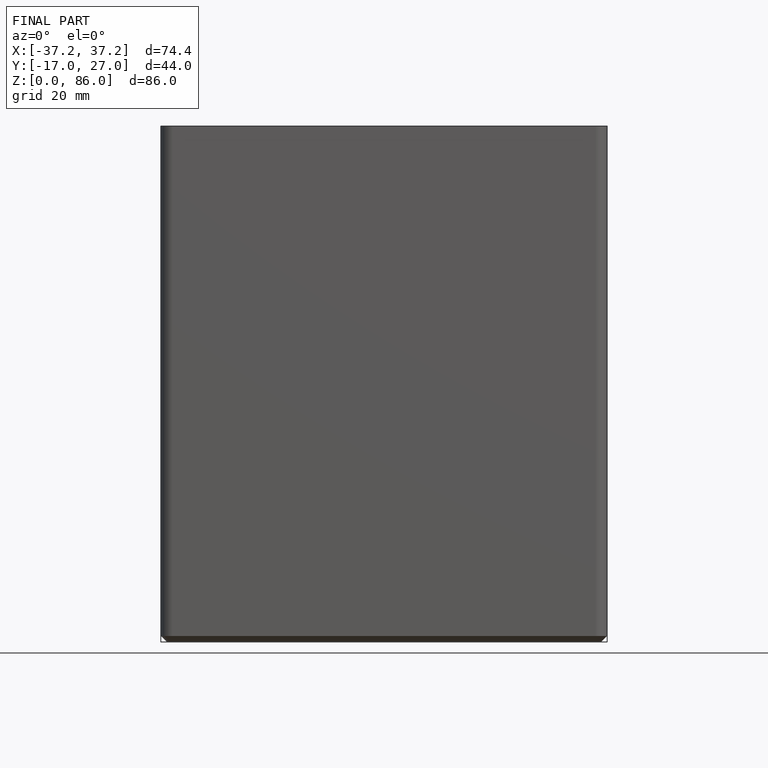
[diagram: finished part — front view with bounding-box wireframe]
